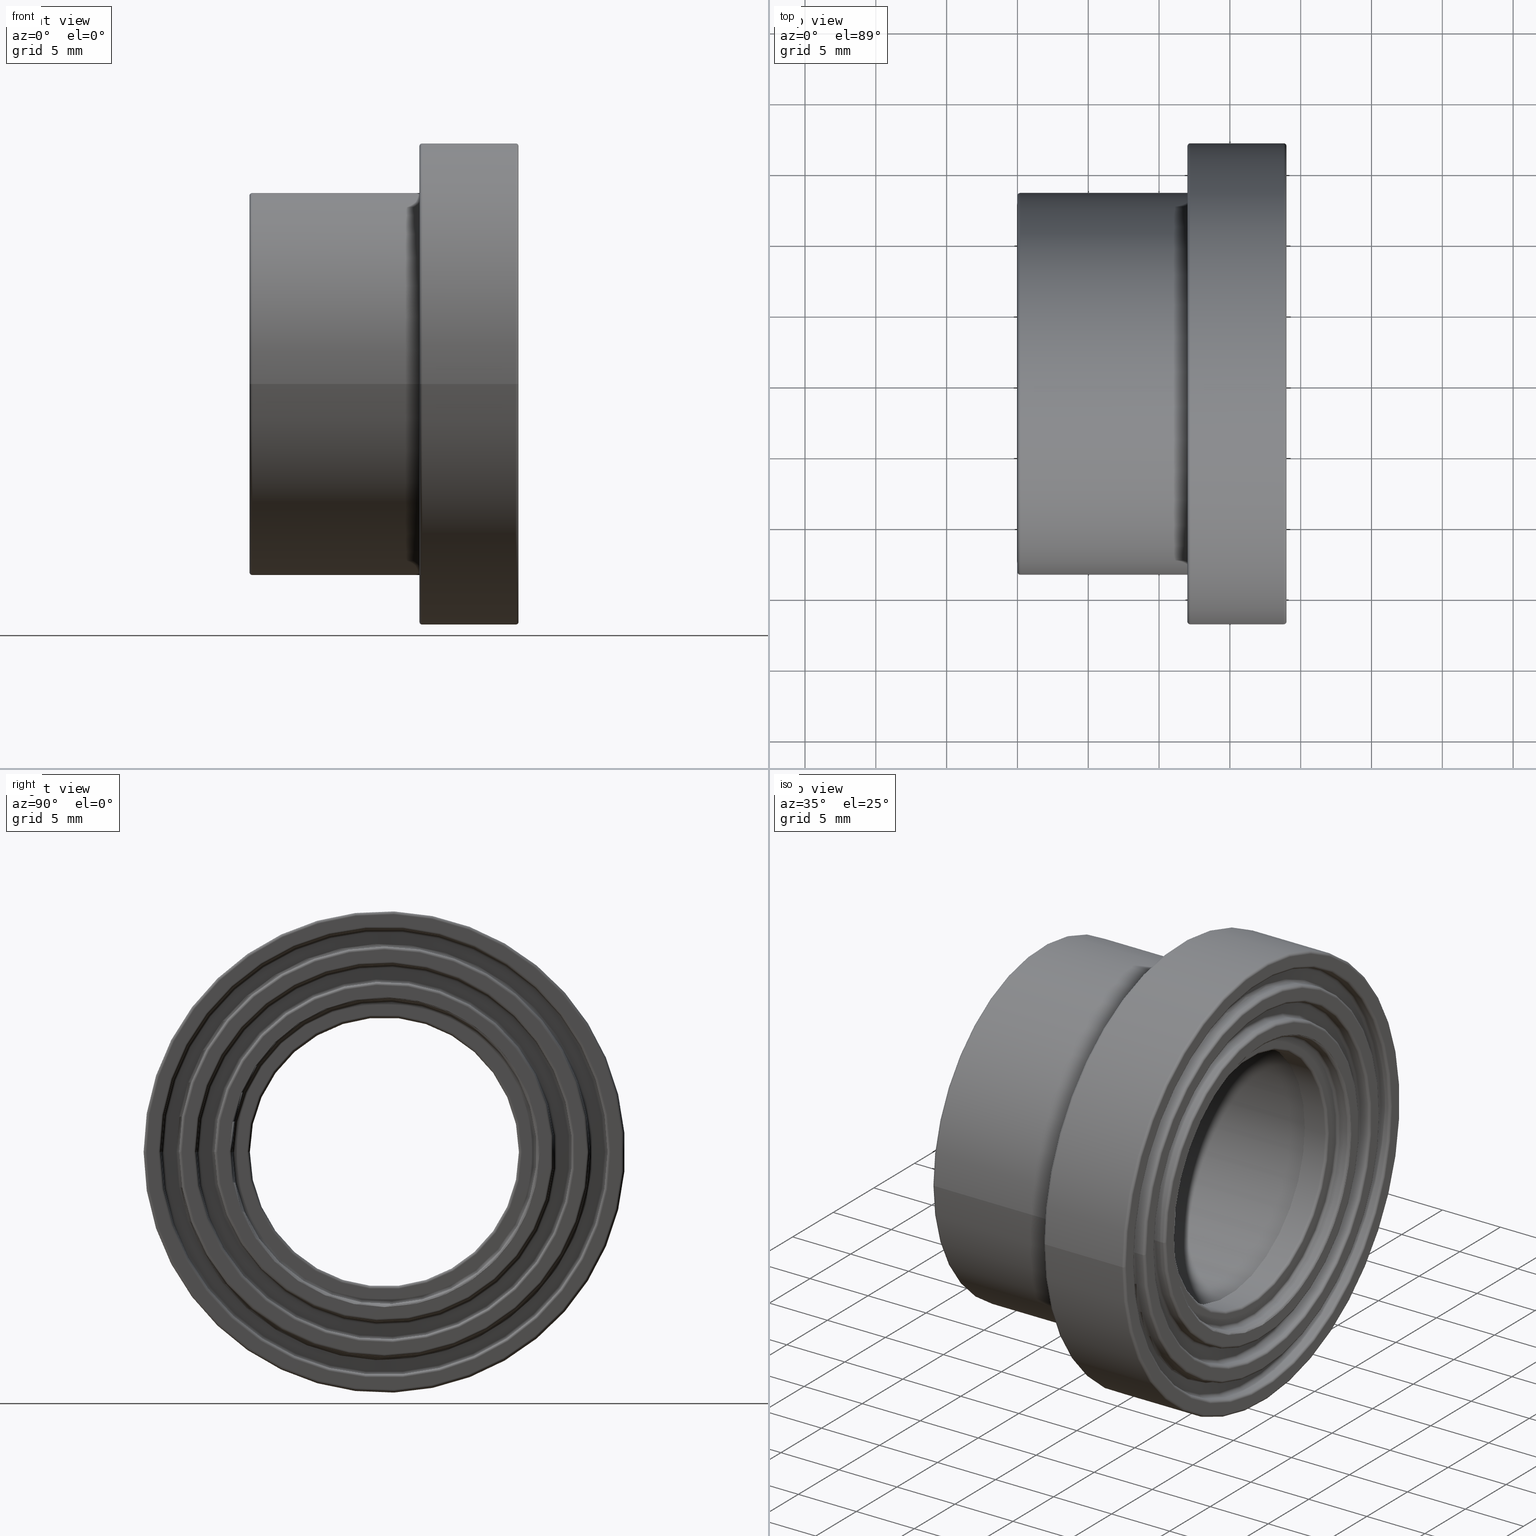
[diagram: canonical four-view strip — front | top / right | iso, engineering-drawing reading convention]
A machine part, canonical four-view strip (front | top / right | iso — engineering-drawing reading convention). The complete STEP part file that produces these views, byte-faithful:
ISO-10303-21;
HEADER;
/* Generated by software containing ST-Developer
 * from STEP Tools, Inc. (www.steptools.com) 
 */

FILE_DESCRIPTION(
/* description */ ('PLASSON FLANGE(FLAT GASKET)C 20'),
/* implementation_level */ '2;1');

FILE_NAME(
/* name */ 
'C:\\Dropbox\\KIMPROJECTS-Inventor\\99-16-3568-Processing\\PVC Catalog
 2017\\055200\\055200020.ipt.stp',
/* time_stamp */ '2017-12-07T16:04:57+02:00',
/* author */ ('KIM'),
/* organization */ (''),
/* preprocessor_version */ 'ST-DEVELOPER v15.6',
/* originating_system */ 'Autodesk Inventor 2015',
/* authorisation */ '');

FILE_SCHEMA (('AUTOMOTIVE_DESIGN { 1 0 10303 214 3 1 1 }'));
ENDSEC;

DATA;
#10=MECHANICAL_DESIGN_GEOMETRIC_PRESENTATION_REPRESENTATION('',(#13),#683);
#11=SHAPE_REPRESENTATION_RELATIONSHIP('SRR','None',#692,#12);
#12=ADVANCED_BREP_SHAPE_REPRESENTATION($,(#14),#682);
#13=STYLED_ITEM('',(#701),#14);
#14=MANIFOLD_SOLID_BREP('Solid1',#378);
#15=CYLINDRICAL_SURFACE('',#385,9.5);
#16=CYLINDRICAL_SURFACE('',#389,10.75);
#17=CYLINDRICAL_SURFACE('',#398,15.75);
#18=CYLINDRICAL_SURFACE('',#408,14.5);
#19=CYLINDRICAL_SURFACE('',#419,10.);
#20=CYLINDRICAL_SURFACE('',#423,12.);
#21=CYLINDRICAL_SURFACE('',#431,13.25);
#22=CYLINDRICAL_SURFACE('',#436,17.);
#23=CYLINDRICAL_SURFACE('',#444,13.5);
#24=PLANE('',#383);
#25=PLANE('',#393);
#26=PLANE('',#400);
#27=PLANE('',#404);
#28=PLANE('',#412);
#29=PLANE('',#417);
#30=PLANE('',#427);
#31=PLANE('',#440);
#32=PLANE('',#445);
#33=FACE_BOUND('',#100,.T.);
#34=FACE_BOUND('',#102,.T.);
#35=FACE_BOUND('',#104,.T.);
#36=FACE_BOUND('',#106,.T.);
#37=FACE_BOUND('',#108,.T.);
#38=FACE_BOUND('',#110,.T.);
#39=FACE_BOUND('',#112,.T.);
#40=FACE_BOUND('',#114,.T.);
#41=FACE_BOUND('',#116,.T.);
#42=FACE_BOUND('',#118,.T.);
#43=FACE_BOUND('',#120,.T.);
#44=FACE_BOUND('',#122,.T.);
#45=FACE_BOUND('',#124,.T.);
#46=FACE_BOUND('',#126,.T.);
#47=FACE_BOUND('',#128,.T.);
#48=FACE_BOUND('',#130,.T.);
#49=FACE_BOUND('',#132,.T.);
#50=FACE_BOUND('',#134,.T.);
#51=FACE_BOUND('',#136,.T.);
#52=FACE_BOUND('',#138,.T.);
#53=FACE_BOUND('',#140,.T.);
#54=FACE_BOUND('',#142,.T.);
#55=FACE_BOUND('',#144,.T.);
#56=FACE_BOUND('',#146,.T.);
#57=FACE_BOUND('',#148,.T.);
#58=FACE_BOUND('',#150,.T.);
#59=FACE_BOUND('',#152,.T.);
#60=FACE_BOUND('',#154,.T.);
#61=FACE_BOUND('',#156,.T.);
#62=FACE_BOUND('',#158,.T.);
#63=FACE_BOUND('',#160,.T.);
#64=FACE_BOUND('',#162,.T.);
#65=FACE_BOUND('',#164,.T.);
#66=FACE_OUTER_BOUND('',#99,.T.);
#67=FACE_OUTER_BOUND('',#101,.T.);
#68=FACE_OUTER_BOUND('',#103,.T.);
#69=FACE_OUTER_BOUND('',#105,.T.);
#70=FACE_OUTER_BOUND('',#107,.T.);
#71=FACE_OUTER_BOUND('',#109,.T.);
#72=FACE_OUTER_BOUND('',#111,.T.);
#73=FACE_OUTER_BOUND('',#113,.T.);
#74=FACE_OUTER_BOUND('',#115,.T.);
#75=FACE_OUTER_BOUND('',#117,.T.);
#76=FACE_OUTER_BOUND('',#119,.T.);
#77=FACE_OUTER_BOUND('',#121,.T.);
#78=FACE_OUTER_BOUND('',#123,.T.);
#79=FACE_OUTER_BOUND('',#125,.T.);
#80=FACE_OUTER_BOUND('',#127,.T.);
#81=FACE_OUTER_BOUND('',#129,.T.);
#82=FACE_OUTER_BOUND('',#131,.T.);
#83=FACE_OUTER_BOUND('',#133,.T.);
#84=FACE_OUTER_BOUND('',#135,.T.);
#85=FACE_OUTER_BOUND('',#137,.T.);
#86=FACE_OUTER_BOUND('',#139,.T.);
#87=FACE_OUTER_BOUND('',#141,.T.);
#88=FACE_OUTER_BOUND('',#143,.T.);
#89=FACE_OUTER_BOUND('',#145,.T.);
#90=FACE_OUTER_BOUND('',#147,.T.);
#91=FACE_OUTER_BOUND('',#149,.T.);
#92=FACE_OUTER_BOUND('',#151,.T.);
#93=FACE_OUTER_BOUND('',#153,.T.);
#94=FACE_OUTER_BOUND('',#155,.T.);
#95=FACE_OUTER_BOUND('',#157,.T.);
#96=FACE_OUTER_BOUND('',#159,.T.);
#97=FACE_OUTER_BOUND('',#161,.T.);
#98=FACE_OUTER_BOUND('',#163,.T.);
#99=EDGE_LOOP('',(#264));
#100=EDGE_LOOP('',(#265));
#101=EDGE_LOOP('',(#266));
#102=EDGE_LOOP('',(#267));
#103=EDGE_LOOP('',(#268));
#104=EDGE_LOOP('',(#269));
#105=EDGE_LOOP('',(#270));
#106=EDGE_LOOP('',(#271));
#107=EDGE_LOOP('',(#272));
#108=EDGE_LOOP('',(#273));
#109=EDGE_LOOP('',(#274));
#110=EDGE_LOOP('',(#275));
#111=EDGE_LOOP('',(#276));
#112=EDGE_LOOP('',(#277));
#113=EDGE_LOOP('',(#278));
#114=EDGE_LOOP('',(#279));
#115=EDGE_LOOP('',(#280));
#116=EDGE_LOOP('',(#281));
#117=EDGE_LOOP('',(#282));
#118=EDGE_LOOP('',(#283));
#119=EDGE_LOOP('',(#284));
#120=EDGE_LOOP('',(#285));
#121=EDGE_LOOP('',(#286));
#122=EDGE_LOOP('',(#287));
#123=EDGE_LOOP('',(#288));
#124=EDGE_LOOP('',(#289));
#125=EDGE_LOOP('',(#290));
#126=EDGE_LOOP('',(#291));
#127=EDGE_LOOP('',(#292));
#128=EDGE_LOOP('',(#293));
#129=EDGE_LOOP('',(#294));
#130=EDGE_LOOP('',(#295));
#131=EDGE_LOOP('',(#296));
#132=EDGE_LOOP('',(#297));
#133=EDGE_LOOP('',(#298));
#134=EDGE_LOOP('',(#299));
#135=EDGE_LOOP('',(#300));
#136=EDGE_LOOP('',(#301));
#137=EDGE_LOOP('',(#302));
#138=EDGE_LOOP('',(#303));
#139=EDGE_LOOP('',(#304));
#140=EDGE_LOOP('',(#305));
#141=EDGE_LOOP('',(#306));
#142=EDGE_LOOP('',(#307));
#143=EDGE_LOOP('',(#308));
#144=EDGE_LOOP('',(#309));
#145=EDGE_LOOP('',(#310));
#146=EDGE_LOOP('',(#311));
#147=EDGE_LOOP('',(#312));
#148=EDGE_LOOP('',(#313));
#149=EDGE_LOOP('',(#314));
#150=EDGE_LOOP('',(#315));
#151=EDGE_LOOP('',(#316));
#152=EDGE_LOOP('',(#317));
#153=EDGE_LOOP('',(#318));
#154=EDGE_LOOP('',(#319));
#155=EDGE_LOOP('',(#320));
#156=EDGE_LOOP('',(#321));
#157=EDGE_LOOP('',(#322));
#158=EDGE_LOOP('',(#323));
#159=EDGE_LOOP('',(#324));
#160=EDGE_LOOP('',(#325));
#161=EDGE_LOOP('',(#326));
#162=EDGE_LOOP('',(#327));
#163=EDGE_LOOP('',(#328));
#164=EDGE_LOOP('',(#329));
#165=CIRCLE('',#381,9.5);
#166=CIRCLE('',#382,9.7);
#167=CIRCLE('',#384,10.55);
#168=CIRCLE('',#386,9.5);
#169=CIRCLE('',#388,10.75);
#170=CIRCLE('',#390,10.75);
#171=CIRCLE('',#392,10.95);
#172=CIRCLE('',#394,11.8);
#173=CIRCLE('',#396,15.75);
#174=CIRCLE('',#397,15.95);
#175=CIRCLE('',#399,15.75);
#176=CIRCLE('',#401,16.8);
#177=CIRCLE('',#403,15.55);
#178=CIRCLE('',#405,14.7);
#179=CIRCLE('',#407,14.5);
#180=CIRCLE('',#409,14.5);
#181=CIRCLE('',#411,14.3);
#182=CIRCLE('',#413,13.45);
#183=CIRCLE('',#415,10.2);
#184=CIRCLE('',#416,10.);
#185=CIRCLE('',#418,13.3);
#186=CIRCLE('',#420,10.);
#187=CIRCLE('',#422,12.);
#188=CIRCLE('',#424,12.);
#189=CIRCLE('',#426,12.2);
#190=CIRCLE('',#428,13.05);
#191=CIRCLE('',#430,13.25);
#192=CIRCLE('',#432,13.25);
#193=CIRCLE('',#435,17.);
#194=CIRCLE('',#437,17.);
#195=CIRCLE('',#439,16.8);
#196=CIRCLE('',#441,13.5);
#197=CIRCLE('',#443,13.5);
#198=VERTEX_POINT('',#582);
#199=VERTEX_POINT('',#584);
#200=VERTEX_POINT('',#587);
#201=VERTEX_POINT('',#590);
#202=VERTEX_POINT('',#593);
#203=VERTEX_POINT('',#596);
#204=VERTEX_POINT('',#599);
#205=VERTEX_POINT('',#602);
#206=VERTEX_POINT('',#605);
#207=VERTEX_POINT('',#607);
#208=VERTEX_POINT('',#610);
#209=VERTEX_POINT('',#613);
#210=VERTEX_POINT('',#616);
#211=VERTEX_POINT('',#619);
#212=VERTEX_POINT('',#622);
#213=VERTEX_POINT('',#625);
#214=VERTEX_POINT('',#628);
#215=VERTEX_POINT('',#631);
#216=VERTEX_POINT('',#634);
#217=VERTEX_POINT('',#636);
#218=VERTEX_POINT('',#639);
#219=VERTEX_POINT('',#642);
#220=VERTEX_POINT('',#645);
#221=VERTEX_POINT('',#648);
#222=VERTEX_POINT('',#651);
#223=VERTEX_POINT('',#654);
#224=VERTEX_POINT('',#657);
#225=VERTEX_POINT('',#660);
#226=VERTEX_POINT('',#664);
#227=VERTEX_POINT('',#667);
#228=VERTEX_POINT('',#670);
#229=VERTEX_POINT('',#673);
#230=VERTEX_POINT('',#676);
#231=EDGE_CURVE('',#198,#198,#165,.T.);
#232=EDGE_CURVE('',#199,#199,#166,.T.);
#233=EDGE_CURVE('',#200,#200,#167,.T.);
#234=EDGE_CURVE('',#201,#201,#168,.T.);
#235=EDGE_CURVE('',#202,#202,#169,.T.);
#236=EDGE_CURVE('',#203,#203,#170,.T.);
#237=EDGE_CURVE('',#204,#204,#171,.T.);
#238=EDGE_CURVE('',#205,#205,#172,.T.);
#239=EDGE_CURVE('',#206,#206,#173,.T.);
#240=EDGE_CURVE('',#207,#207,#174,.T.);
#241=EDGE_CURVE('',#208,#208,#175,.T.);
#242=EDGE_CURVE('',#209,#209,#176,.T.);
#243=EDGE_CURVE('',#210,#210,#177,.T.);
#244=EDGE_CURVE('',#211,#211,#178,.T.);
#245=EDGE_CURVE('',#212,#212,#179,.T.);
#246=EDGE_CURVE('',#213,#213,#180,.T.);
#247=EDGE_CURVE('',#214,#214,#181,.T.);
#248=EDGE_CURVE('',#215,#215,#182,.T.);
#249=EDGE_CURVE('',#216,#216,#183,.T.);
#250=EDGE_CURVE('',#217,#217,#184,.T.);
#251=EDGE_CURVE('',#218,#218,#185,.T.);
#252=EDGE_CURVE('',#219,#219,#186,.T.);
#253=EDGE_CURVE('',#220,#220,#187,.T.);
#254=EDGE_CURVE('',#221,#221,#188,.T.);
#255=EDGE_CURVE('',#222,#222,#189,.T.);
#256=EDGE_CURVE('',#223,#223,#190,.T.);
#257=EDGE_CURVE('',#224,#224,#191,.T.);
#258=EDGE_CURVE('',#225,#225,#192,.T.);
#259=EDGE_CURVE('',#226,#226,#193,.T.);
#260=EDGE_CURVE('',#227,#227,#194,.T.);
#261=EDGE_CURVE('',#228,#228,#195,.T.);
#262=EDGE_CURVE('',#229,#229,#196,.T.);
#263=EDGE_CURVE('',#230,#230,#197,.T.);
#264=ORIENTED_EDGE('',*,*,#231,.T.);
#265=ORIENTED_EDGE('',*,*,#232,.T.);
#266=ORIENTED_EDGE('',*,*,#233,.F.);
#267=ORIENTED_EDGE('',*,*,#232,.F.);
#268=ORIENTED_EDGE('',*,*,#234,.T.);
#269=ORIENTED_EDGE('',*,*,#231,.F.);
#270=ORIENTED_EDGE('',*,*,#233,.T.);
#271=ORIENTED_EDGE('',*,*,#235,.T.);
#272=ORIENTED_EDGE('',*,*,#236,.F.);
#273=ORIENTED_EDGE('',*,*,#235,.F.);
#274=ORIENTED_EDGE('',*,*,#236,.T.);
#275=ORIENTED_EDGE('',*,*,#237,.T.);
#276=ORIENTED_EDGE('',*,*,#238,.F.);
#277=ORIENTED_EDGE('',*,*,#237,.F.);
#278=ORIENTED_EDGE('',*,*,#239,.T.);
#279=ORIENTED_EDGE('',*,*,#240,.T.);
#280=ORIENTED_EDGE('',*,*,#241,.F.);
#281=ORIENTED_EDGE('',*,*,#239,.F.);
#282=ORIENTED_EDGE('',*,*,#242,.F.);
#283=ORIENTED_EDGE('',*,*,#240,.F.);
#284=ORIENTED_EDGE('',*,*,#243,.T.);
#285=ORIENTED_EDGE('',*,*,#241,.T.);
#286=ORIENTED_EDGE('',*,*,#243,.F.);
#287=ORIENTED_EDGE('',*,*,#244,.F.);
#288=ORIENTED_EDGE('',*,*,#245,.T.);
#289=ORIENTED_EDGE('',*,*,#244,.T.);
#290=ORIENTED_EDGE('',*,*,#246,.F.);
#291=ORIENTED_EDGE('',*,*,#245,.F.);
#292=ORIENTED_EDGE('',*,*,#247,.T.);
#293=ORIENTED_EDGE('',*,*,#246,.T.);
#294=ORIENTED_EDGE('',*,*,#247,.F.);
#295=ORIENTED_EDGE('',*,*,#248,.F.);
#296=ORIENTED_EDGE('',*,*,#249,.T.);
#297=ORIENTED_EDGE('',*,*,#250,.T.);
#298=ORIENTED_EDGE('',*,*,#251,.F.);
#299=ORIENTED_EDGE('',*,*,#249,.F.);
#300=ORIENTED_EDGE('',*,*,#252,.F.);
#301=ORIENTED_EDGE('',*,*,#250,.F.);
#302=ORIENTED_EDGE('',*,*,#238,.T.);
#303=ORIENTED_EDGE('',*,*,#253,.T.);
#304=ORIENTED_EDGE('',*,*,#254,.F.);
#305=ORIENTED_EDGE('',*,*,#253,.F.);
#306=ORIENTED_EDGE('',*,*,#254,.T.);
#307=ORIENTED_EDGE('',*,*,#255,.T.);
#308=ORIENTED_EDGE('',*,*,#256,.F.);
#309=ORIENTED_EDGE('',*,*,#255,.F.);
#310=ORIENTED_EDGE('',*,*,#256,.T.);
#311=ORIENTED_EDGE('',*,*,#257,.T.);
#312=ORIENTED_EDGE('',*,*,#258,.F.);
#313=ORIENTED_EDGE('',*,*,#257,.F.);
#314=ORIENTED_EDGE('',*,*,#258,.T.);
#315=ORIENTED_EDGE('',*,*,#248,.T.);
#316=ORIENTED_EDGE('',*,*,#242,.T.);
#317=ORIENTED_EDGE('',*,*,#259,.T.);
#318=ORIENTED_EDGE('',*,*,#260,.F.);
#319=ORIENTED_EDGE('',*,*,#259,.F.);
#320=ORIENTED_EDGE('',*,*,#260,.T.);
#321=ORIENTED_EDGE('',*,*,#261,.T.);
#322=ORIENTED_EDGE('',*,*,#261,.F.);
#323=ORIENTED_EDGE('',*,*,#262,.F.);
#324=ORIENTED_EDGE('',*,*,#263,.T.);
#325=ORIENTED_EDGE('',*,*,#251,.T.);
#326=ORIENTED_EDGE('',*,*,#262,.T.);
#327=ORIENTED_EDGE('',*,*,#263,.F.);
#328=ORIENTED_EDGE('',*,*,#252,.T.);
#329=ORIENTED_EDGE('',*,*,#234,.F.);
#330=TOROIDAL_SURFACE('',#380,9.7,0.2);
#331=TOROIDAL_SURFACE('',#387,10.55,0.2);
#332=TOROIDAL_SURFACE('',#391,10.95,0.2);
#333=TOROIDAL_SURFACE('',#395,15.95,0.2);
#334=TOROIDAL_SURFACE('',#402,15.55,0.2);
#335=TOROIDAL_SURFACE('',#406,14.7,0.2);
#336=TOROIDAL_SURFACE('',#410,14.3,0.2);
#337=TOROIDAL_SURFACE('',#414,10.2,0.2);
#338=TOROIDAL_SURFACE('',#421,11.8,0.2);
#339=TOROIDAL_SURFACE('',#425,12.2,0.2);
#340=TOROIDAL_SURFACE('',#429,13.05,0.2);
#341=TOROIDAL_SURFACE('',#433,13.45,0.2);
#342=TOROIDAL_SURFACE('',#434,16.8,0.2);
#343=TOROIDAL_SURFACE('',#438,16.8,0.2);
#344=TOROIDAL_SURFACE('',#442,13.3,0.2);
#345=ADVANCED_FACE('',(#66,#33),#330,.T.);
#346=ADVANCED_FACE('',(#67,#34),#24,.T.);
#347=ADVANCED_FACE('',(#68,#35),#15,.F.);
#348=ADVANCED_FACE('',(#69,#36),#331,.F.);
#349=ADVANCED_FACE('',(#70,#37),#16,.F.);
#350=ADVANCED_FACE('',(#71,#38),#332,.T.);
#351=ADVANCED_FACE('',(#72,#39),#25,.T.);
#352=ADVANCED_FACE('',(#73,#40),#333,.T.);
#353=ADVANCED_FACE('',(#74,#41),#17,.F.);
#354=ADVANCED_FACE('',(#75,#42),#26,.T.);
#355=ADVANCED_FACE('',(#76,#43),#334,.F.);
#356=ADVANCED_FACE('',(#77,#44),#27,.T.);
#357=ADVANCED_FACE('',(#78,#45),#335,.F.);
#358=ADVANCED_FACE('',(#79,#46),#18,.T.);
#359=ADVANCED_FACE('',(#80,#47),#336,.T.);
#360=ADVANCED_FACE('',(#81,#48),#28,.T.);
#361=ADVANCED_FACE('',(#82,#49),#337,.T.);
#362=ADVANCED_FACE('',(#83,#50),#29,.T.);
#363=ADVANCED_FACE('',(#84,#51),#19,.F.);
#364=ADVANCED_FACE('',(#85,#52),#338,.T.);
#365=ADVANCED_FACE('',(#86,#53),#20,.T.);
#366=ADVANCED_FACE('',(#87,#54),#339,.F.);
#367=ADVANCED_FACE('',(#88,#55),#30,.T.);
#368=ADVANCED_FACE('',(#89,#56),#340,.F.);
#369=ADVANCED_FACE('',(#90,#57),#21,.F.);
#370=ADVANCED_FACE('',(#91,#58),#341,.T.);
#371=ADVANCED_FACE('',(#92,#59),#342,.T.);
#372=ADVANCED_FACE('',(#93,#60),#22,.T.);
#373=ADVANCED_FACE('',(#94,#61),#343,.T.);
#374=ADVANCED_FACE('',(#95,#62),#31,.T.);
#375=ADVANCED_FACE('',(#96,#63),#344,.T.);
#376=ADVANCED_FACE('',(#97,#64),#23,.T.);
#377=ADVANCED_FACE('',(#98,#65),#32,.T.);
#378=CLOSED_SHELL('',(#345,#346,#347,#348,#349,#350,#351,#352,#353,#354,
#355,#356,#357,#358,#359,#360,#361,#362,#363,#364,#365,#366,#367,#368,#369,
#370,#371,#372,#373,#374,#375,#376,#377));
#379=AXIS2_PLACEMENT_3D('placement',#580,#446,#447);
#380=AXIS2_PLACEMENT_3D('',#581,#448,#449);
#381=AXIS2_PLACEMENT_3D('',#583,#450,#451);
#382=AXIS2_PLACEMENT_3D('',#585,#452,#453);
#383=AXIS2_PLACEMENT_3D('',#586,#454,#455);
#384=AXIS2_PLACEMENT_3D('',#588,#456,#457);
#385=AXIS2_PLACEMENT_3D('',#589,#458,#459);
#386=AXIS2_PLACEMENT_3D('',#591,#460,#461);
#387=AXIS2_PLACEMENT_3D('',#592,#462,#463);
#388=AXIS2_PLACEMENT_3D('',#594,#464,#465);
#389=AXIS2_PLACEMENT_3D('',#595,#466,#467);
#390=AXIS2_PLACEMENT_3D('',#597,#468,#469);
#391=AXIS2_PLACEMENT_3D('',#598,#470,#471);
#392=AXIS2_PLACEMENT_3D('',#600,#472,#473);
#393=AXIS2_PLACEMENT_3D('',#601,#474,#475);
#394=AXIS2_PLACEMENT_3D('',#603,#476,#477);
#395=AXIS2_PLACEMENT_3D('',#604,#478,#479);
#396=AXIS2_PLACEMENT_3D('',#606,#480,#481);
#397=AXIS2_PLACEMENT_3D('',#608,#482,#483);
#398=AXIS2_PLACEMENT_3D('',#609,#484,#485);
#399=AXIS2_PLACEMENT_3D('',#611,#486,#487);
#400=AXIS2_PLACEMENT_3D('',#612,#488,#489);
#401=AXIS2_PLACEMENT_3D('',#614,#490,#491);
#402=AXIS2_PLACEMENT_3D('',#615,#492,#493);
#403=AXIS2_PLACEMENT_3D('',#617,#494,#495);
#404=AXIS2_PLACEMENT_3D('',#618,#496,#497);
#405=AXIS2_PLACEMENT_3D('',#620,#498,#499);
#406=AXIS2_PLACEMENT_3D('',#621,#500,#501);
#407=AXIS2_PLACEMENT_3D('',#623,#502,#503);
#408=AXIS2_PLACEMENT_3D('',#624,#504,#505);
#409=AXIS2_PLACEMENT_3D('',#626,#506,#507);
#410=AXIS2_PLACEMENT_3D('',#627,#508,#509);
#411=AXIS2_PLACEMENT_3D('',#629,#510,#511);
#412=AXIS2_PLACEMENT_3D('',#630,#512,#513);
#413=AXIS2_PLACEMENT_3D('',#632,#514,#515);
#414=AXIS2_PLACEMENT_3D('',#633,#516,#517);
#415=AXIS2_PLACEMENT_3D('',#635,#518,#519);
#416=AXIS2_PLACEMENT_3D('',#637,#520,#521);
#417=AXIS2_PLACEMENT_3D('',#638,#522,#523);
#418=AXIS2_PLACEMENT_3D('',#640,#524,#525);
#419=AXIS2_PLACEMENT_3D('',#641,#526,#527);
#420=AXIS2_PLACEMENT_3D('',#643,#528,#529);
#421=AXIS2_PLACEMENT_3D('',#644,#530,#531);
#422=AXIS2_PLACEMENT_3D('',#646,#532,#533);
#423=AXIS2_PLACEMENT_3D('',#647,#534,#535);
#424=AXIS2_PLACEMENT_3D('',#649,#536,#537);
#425=AXIS2_PLACEMENT_3D('',#650,#538,#539);
#426=AXIS2_PLACEMENT_3D('',#652,#540,#541);
#427=AXIS2_PLACEMENT_3D('',#653,#542,#543);
#428=AXIS2_PLACEMENT_3D('',#655,#544,#545);
#429=AXIS2_PLACEMENT_3D('',#656,#546,#547);
#430=AXIS2_PLACEMENT_3D('',#658,#548,#549);
#431=AXIS2_PLACEMENT_3D('',#659,#550,#551);
#432=AXIS2_PLACEMENT_3D('',#661,#552,#553);
#433=AXIS2_PLACEMENT_3D('',#662,#554,#555);
#434=AXIS2_PLACEMENT_3D('',#663,#556,#557);
#435=AXIS2_PLACEMENT_3D('',#665,#558,#559);
#436=AXIS2_PLACEMENT_3D('',#666,#560,#561);
#437=AXIS2_PLACEMENT_3D('',#668,#562,#563);
#438=AXIS2_PLACEMENT_3D('',#669,#564,#565);
#439=AXIS2_PLACEMENT_3D('',#671,#566,#567);
#440=AXIS2_PLACEMENT_3D('',#672,#568,#569);
#441=AXIS2_PLACEMENT_3D('',#674,#570,#571);
#442=AXIS2_PLACEMENT_3D('',#675,#572,#573);
#443=AXIS2_PLACEMENT_3D('',#677,#574,#575);
#444=AXIS2_PLACEMENT_3D('',#678,#576,#577);
#445=AXIS2_PLACEMENT_3D('',#679,#578,#579);
#446=DIRECTION('axis',(0.,0.,1.));
#447=DIRECTION('refdir',(1.,0.,0.));
#448=DIRECTION('center_axis',(-1.,0.,0.));
#449=DIRECTION('ref_axis',(0.,0.,1.));
#450=DIRECTION('center_axis',(-1.,0.,0.));
#451=DIRECTION('ref_axis',(0.,1.,6.12323399573677E-17));
#452=DIRECTION('center_axis',(1.,0.,0.));
#453=DIRECTION('ref_axis',(0.,1.,6.12323399573677E-17));
#454=DIRECTION('center_axis',(1.,0.,0.));
#455=DIRECTION('ref_axis',(0.,0.,-1.));
#456=DIRECTION('center_axis',(-1.,0.,0.));
#457=DIRECTION('ref_axis',(0.,1.,6.12323399573677E-17));
#458=DIRECTION('center_axis',(-1.,0.,0.));
#459=DIRECTION('ref_axis',(0.,-1.,0.));
#460=DIRECTION('center_axis',(-1.,0.,0.));
#461=DIRECTION('ref_axis',(0.,0.,1.));
#462=DIRECTION('center_axis',(-1.,0.,0.));
#463=DIRECTION('ref_axis',(0.,0.,1.));
#464=DIRECTION('center_axis',(1.,0.,0.));
#465=DIRECTION('ref_axis',(0.,1.,6.12323399573677E-17));
#466=DIRECTION('center_axis',(-1.,0.,0.));
#467=DIRECTION('ref_axis',(0.,-1.,0.));
#468=DIRECTION('center_axis',(-1.,0.,0.));
#469=DIRECTION('ref_axis',(0.,1.,6.12323399573677E-17));
#470=DIRECTION('center_axis',(-1.,0.,0.));
#471=DIRECTION('ref_axis',(0.,0.,1.));
#472=DIRECTION('center_axis',(1.,0.,0.));
#473=DIRECTION('ref_axis',(0.,1.,6.12323399573677E-17));
#474=DIRECTION('center_axis',(1.,0.,0.));
#475=DIRECTION('ref_axis',(0.,0.,-1.));
#476=DIRECTION('center_axis',(-1.,0.,0.));
#477=DIRECTION('ref_axis',(0.,1.,6.12323399573676E-17));
#478=DIRECTION('center_axis',(-1.,0.,0.));
#479=DIRECTION('ref_axis',(0.,0.,1.));
#480=DIRECTION('center_axis',(-1.,0.,0.));
#481=DIRECTION('ref_axis',(0.,1.,6.12323399573676E-17));
#482=DIRECTION('center_axis',(1.,0.,0.));
#483=DIRECTION('ref_axis',(0.,1.,6.12323399573677E-17));
#484=DIRECTION('center_axis',(-1.,0.,0.));
#485=DIRECTION('ref_axis',(0.,-1.,0.));
#486=DIRECTION('center_axis',(1.,0.,0.));
#487=DIRECTION('ref_axis',(0.,1.,6.12323399573676E-17));
#488=DIRECTION('center_axis',(1.,0.,0.));
#489=DIRECTION('ref_axis',(0.,0.,-1.));
#490=DIRECTION('center_axis',(-1.,0.,0.));
#491=DIRECTION('ref_axis',(0.,1.,6.12323399573677E-17));
#492=DIRECTION('center_axis',(-1.,0.,0.));
#493=DIRECTION('ref_axis',(0.,0.,1.));
#494=DIRECTION('center_axis',(-1.,0.,0.));
#495=DIRECTION('ref_axis',(0.,1.,6.12323399573677E-17));
#496=DIRECTION('center_axis',(1.,0.,0.));
#497=DIRECTION('ref_axis',(0.,0.,-1.));
#498=DIRECTION('center_axis',(1.,0.,0.));
#499=DIRECTION('ref_axis',(0.,1.,6.12323399573677E-17));
#500=DIRECTION('center_axis',(-1.,0.,0.));
#501=DIRECTION('ref_axis',(0.,0.,1.));
#502=DIRECTION('center_axis',(-1.,0.,0.));
#503=DIRECTION('ref_axis',(0.,1.,6.12323399573677E-17));
#504=DIRECTION('center_axis',(-1.,0.,0.));
#505=DIRECTION('ref_axis',(0.,-1.,0.));
#506=DIRECTION('center_axis',(1.,0.,0.));
#507=DIRECTION('ref_axis',(0.,1.,6.12323399573677E-17));
#508=DIRECTION('center_axis',(-1.,0.,0.));
#509=DIRECTION('ref_axis',(0.,0.,1.));
#510=DIRECTION('center_axis',(-1.,0.,0.));
#511=DIRECTION('ref_axis',(0.,1.,6.12323399573676E-17));
#512=DIRECTION('center_axis',(1.,0.,0.));
#513=DIRECTION('ref_axis',(0.,0.,-1.));
#514=DIRECTION('center_axis',(1.,0.,0.));
#515=DIRECTION('ref_axis',(0.,1.,6.12323399573677E-17));
#516=DIRECTION('center_axis',(-1.,0.,0.));
#517=DIRECTION('ref_axis',(0.,0.,1.));
#518=DIRECTION('center_axis',(-1.,0.,0.));
#519=DIRECTION('ref_axis',(0.,1.,6.12323399573677E-17));
#520=DIRECTION('center_axis',(1.,0.,0.));
#521=DIRECTION('ref_axis',(0.,1.,6.12323399573677E-17));
#522=DIRECTION('center_axis',(-1.,0.,0.));
#523=DIRECTION('ref_axis',(0.,0.,1.));
#524=DIRECTION('center_axis',(1.,0.,0.));
#525=DIRECTION('ref_axis',(0.,1.,6.12323399573677E-17));
#526=DIRECTION('center_axis',(-1.,0.,0.));
#527=DIRECTION('ref_axis',(0.,-1.,0.));
#528=DIRECTION('center_axis',(-1.,0.,0.));
#529=DIRECTION('ref_axis',(0.,0.,1.));
#530=DIRECTION('center_axis',(-1.,0.,0.));
#531=DIRECTION('ref_axis',(0.,0.,1.));
#532=DIRECTION('center_axis',(1.,0.,0.));
#533=DIRECTION('ref_axis',(0.,1.,6.12323399573677E-17));
#534=DIRECTION('center_axis',(-1.,0.,0.));
#535=DIRECTION('ref_axis',(0.,-1.,0.));
#536=DIRECTION('center_axis',(-1.,0.,0.));
#537=DIRECTION('ref_axis',(0.,1.,6.12323399573677E-17));
#538=DIRECTION('center_axis',(-1.,0.,0.));
#539=DIRECTION('ref_axis',(0.,0.,1.));
#540=DIRECTION('center_axis',(1.,0.,0.));
#541=DIRECTION('ref_axis',(0.,1.,6.12323399573677E-17));
#542=DIRECTION('center_axis',(1.,0.,0.));
#543=DIRECTION('ref_axis',(0.,0.,-1.));
#544=DIRECTION('center_axis',(-1.,0.,0.));
#545=DIRECTION('ref_axis',(0.,1.,6.12323399573676E-17));
#546=DIRECTION('center_axis',(-1.,0.,0.));
#547=DIRECTION('ref_axis',(0.,0.,1.));
#548=DIRECTION('center_axis',(1.,0.,0.));
#549=DIRECTION('ref_axis',(0.,1.,6.12323399573677E-17));
#550=DIRECTION('center_axis',(-1.,0.,0.));
#551=DIRECTION('ref_axis',(0.,-1.,0.));
#552=DIRECTION('center_axis',(-1.,0.,0.));
#553=DIRECTION('ref_axis',(0.,1.,6.12323399573677E-17));
#554=DIRECTION('center_axis',(-1.,0.,0.));
#555=DIRECTION('ref_axis',(0.,0.,1.));
#556=DIRECTION('center_axis',(-1.,0.,0.));
#557=DIRECTION('ref_axis',(0.,0.,1.));
#558=DIRECTION('center_axis',(1.,0.,0.));
#559=DIRECTION('ref_axis',(0.,1.,6.12323399573677E-17));
#560=DIRECTION('center_axis',(-1.,0.,0.));
#561=DIRECTION('ref_axis',(0.,-1.,0.));
#562=DIRECTION('center_axis',(-1.,0.,0.));
#563=DIRECTION('ref_axis',(0.,1.,6.12323399573677E-17));
#564=DIRECTION('center_axis',(-1.,0.,0.));
#565=DIRECTION('ref_axis',(0.,0.,1.));
#566=DIRECTION('center_axis',(1.,0.,0.));
#567=DIRECTION('ref_axis',(0.,1.,6.12323399573677E-17));
#568=DIRECTION('center_axis',(-1.,0.,0.));
#569=DIRECTION('ref_axis',(0.,0.,1.));
#570=DIRECTION('center_axis',(-1.,0.,0.));
#571=DIRECTION('ref_axis',(0.,0.,1.));
#572=DIRECTION('center_axis',(-1.,0.,0.));
#573=DIRECTION('ref_axis',(0.,0.,1.));
#574=DIRECTION('center_axis',(-1.,0.,0.));
#575=DIRECTION('ref_axis',(0.,1.,6.12323399573677E-17));
#576=DIRECTION('center_axis',(-1.,0.,0.));
#577=DIRECTION('ref_axis',(0.,-1.,0.));
#578=DIRECTION('center_axis',(-1.,0.,0.));
#579=DIRECTION('ref_axis',(0.,0.,1.));
#580=CARTESIAN_POINT('',(0.,0.,0.));
#581=CARTESIAN_POINT('Origin',(17.75,0.,0.));
#582=CARTESIAN_POINT('',(17.75,-9.5,5.81707229594993E-16));
#583=CARTESIAN_POINT('Origin',(17.75,0.,0.));
#584=CARTESIAN_POINT('',(17.95,-9.7,-1.7818610927594E-15));
#585=CARTESIAN_POINT('Origin',(17.95,0.,0.));
#586=CARTESIAN_POINT('Origin',(17.95,-10.75,0.));
#587=CARTESIAN_POINT('',(17.95,-10.55,6.46001186550229E-16));
#588=CARTESIAN_POINT('Origin',(17.95,0.,0.));
#589=CARTESIAN_POINT('Origin',(16.975,0.,0.));
#590=CARTESIAN_POINT('',(16.,-9.5,0.));
#591=CARTESIAN_POINT('Origin',(16.,0.,0.));
#592=CARTESIAN_POINT('Origin',(18.15,0.,0.));
#593=CARTESIAN_POINT('',(18.15,-10.75,-1.97474296362511E-15));
#594=CARTESIAN_POINT('Origin',(18.15,0.,0.));
#595=CARTESIAN_POINT('Origin',(18.475,0.,0.));
#596=CARTESIAN_POINT('',(18.8,-10.75,6.58247654541702E-16));
#597=CARTESIAN_POINT('Origin',(18.8,0.,0.));
#598=CARTESIAN_POINT('Origin',(18.8,0.,0.));
#599=CARTESIAN_POINT('',(19.,-10.95,-2.01148236759953E-15));
#600=CARTESIAN_POINT('Origin',(19.,0.,0.));
#601=CARTESIAN_POINT('Origin',(19.,-12.,0.));
#602=CARTESIAN_POINT('',(19.,-11.8,7.22541611496938E-16));
#603=CARTESIAN_POINT('Origin',(19.,0.,0.));
#604=CARTESIAN_POINT('Origin',(18.8,0.,0.));
#605=CARTESIAN_POINT('',(18.8,-15.75,9.6440935432854E-16));
#606=CARTESIAN_POINT('Origin',(18.8,0.,0.));
#607=CARTESIAN_POINT('',(19.,-15.95,-2.92996746696004E-15));
#608=CARTESIAN_POINT('Origin',(19.,0.,0.));
#609=CARTESIAN_POINT('Origin',(18.475,0.,0.));
#610=CARTESIAN_POINT('',(18.15,-15.75,-2.89322806298562E-15));
#611=CARTESIAN_POINT('Origin',(18.15,0.,0.));
#612=CARTESIAN_POINT('Origin',(19.,-17.,0.));
#613=CARTESIAN_POINT('',(19.,-16.8,1.02870331128378E-15));
#614=CARTESIAN_POINT('Origin',(19.,0.,0.));
#615=CARTESIAN_POINT('Origin',(18.15,0.,0.));
#616=CARTESIAN_POINT('',(17.95,-15.55,9.52162886337067E-16));
#617=CARTESIAN_POINT('Origin',(17.95,0.,0.));
#618=CARTESIAN_POINT('Origin',(17.95,-15.75,0.));
#619=CARTESIAN_POINT('',(17.95,-14.7,-2.70034619211991E-15));
#620=CARTESIAN_POINT('Origin',(17.95,0.,0.));
#621=CARTESIAN_POINT('Origin',(18.15,0.,0.));
#622=CARTESIAN_POINT('',(18.15,-14.5,8.87868929381831E-16));
#623=CARTESIAN_POINT('Origin',(18.15,0.,0.));
#624=CARTESIAN_POINT('Origin',(18.475,0.,0.));
#625=CARTESIAN_POINT('',(18.8,-14.5,-2.66360678814549E-15));
#626=CARTESIAN_POINT('Origin',(18.8,0.,0.));
#627=CARTESIAN_POINT('Origin',(18.8,0.,0.));
#628=CARTESIAN_POINT('',(19.,-14.3,8.75622461390357E-16));
#629=CARTESIAN_POINT('Origin',(19.,0.,0.));
#630=CARTESIAN_POINT('Origin',(19.,-14.5,0.));
#631=CARTESIAN_POINT('',(19.,-13.45,-2.47072491727978E-15));
#632=CARTESIAN_POINT('Origin',(19.,0.,0.));
#633=CARTESIAN_POINT('Origin',(0.2,0.,0.));
#634=CARTESIAN_POINT('',(0.,-10.2,6.2456986756515E-16));
#635=CARTESIAN_POINT('Origin',(0.,0.,0.));
#636=CARTESIAN_POINT('',(0.2,-10.,-1.83697019872103E-15));
#637=CARTESIAN_POINT('Origin',(0.2,0.,0.));
#638=CARTESIAN_POINT('Origin',(0.,-10.,0.));
#639=CARTESIAN_POINT('',(0.,-13.3,-2.44317036429897E-15));
#640=CARTESIAN_POINT('Origin',(0.,0.,0.));
#641=CARTESIAN_POINT('Origin',(8.,0.,0.));
#642=CARTESIAN_POINT('',(16.,-10.,0.));
#643=CARTESIAN_POINT('Origin',(16.,0.,0.));
#644=CARTESIAN_POINT('Origin',(18.8,0.,0.));
#645=CARTESIAN_POINT('',(18.8,-12.,-2.20436423846523E-15));
#646=CARTESIAN_POINT('Origin',(18.8,0.,0.));
#647=CARTESIAN_POINT('Origin',(18.475,0.,0.));
#648=CARTESIAN_POINT('',(18.15,-12.,7.34788079488411E-16));
#649=CARTESIAN_POINT('Origin',(18.15,0.,0.));
#650=CARTESIAN_POINT('Origin',(18.15,0.,0.));
#651=CARTESIAN_POINT('',(17.95,-12.2,-2.24110364243966E-15));
#652=CARTESIAN_POINT('Origin',(17.95,0.,0.));
#653=CARTESIAN_POINT('Origin',(17.95,-13.25,0.));
#654=CARTESIAN_POINT('',(17.95,-13.05,7.99082036443647E-16));
#655=CARTESIAN_POINT('Origin',(17.95,0.,0.));
#656=CARTESIAN_POINT('Origin',(18.15,0.,0.));
#657=CARTESIAN_POINT('',(18.15,-13.25,-2.43398551330536E-15));
#658=CARTESIAN_POINT('Origin',(18.15,0.,0.));
#659=CARTESIAN_POINT('Origin',(18.475,0.,0.));
#660=CARTESIAN_POINT('',(18.8,-13.25,8.11328504435121E-16));
#661=CARTESIAN_POINT('Origin',(18.8,0.,0.));
#662=CARTESIAN_POINT('Origin',(18.8,0.,0.));
#663=CARTESIAN_POINT('Origin',(18.8,0.,0.));
#664=CARTESIAN_POINT('',(18.8,-17.,-3.12284933782575E-15));
#665=CARTESIAN_POINT('Origin',(18.8,0.,0.));
#666=CARTESIAN_POINT('Origin',(15.5,0.,0.));
#667=CARTESIAN_POINT('',(12.2,-17.,1.04094977927525E-15));
#668=CARTESIAN_POINT('Origin',(12.2,0.,0.));
#669=CARTESIAN_POINT('Origin',(12.2,0.,0.));
#670=CARTESIAN_POINT('',(12.,-16.8,-3.08610993385133E-15));
#671=CARTESIAN_POINT('Origin',(12.,0.,0.));
#672=CARTESIAN_POINT('Origin',(12.,-13.5,0.));
#673=CARTESIAN_POINT('',(12.,-13.5,0.));
#674=CARTESIAN_POINT('Origin',(12.,0.,0.));
#675=CARTESIAN_POINT('Origin',(0.2,0.,0.));
#676=CARTESIAN_POINT('',(0.2,-13.5,8.26636589424463E-16));
#677=CARTESIAN_POINT('Origin',(0.2,0.,0.));
#678=CARTESIAN_POINT('Origin',(6.,0.,0.));
#679=CARTESIAN_POINT('Origin',(16.,-9.5,0.));
#680=UNCERTAINTY_MEASURE_WITH_UNIT(LENGTH_MEASURE(0.01),#684,
'DISTANCE_ACCURACY_VALUE',
'Maximum model space distance between geometric entities at asserted c
onnectivities');
#681=UNCERTAINTY_MEASURE_WITH_UNIT(LENGTH_MEASURE(1.E-6),#684,
'DISTANCE_ACCURACY_VALUE',
'Maximum model space distance between geometric entities at asserted c
onnectivities');
#682=(
GEOMETRIC_REPRESENTATION_CONTEXT(3)
GLOBAL_UNCERTAINTY_ASSIGNED_CONTEXT((#680))
GLOBAL_UNIT_ASSIGNED_CONTEXT((#684,#687,#685))
REPRESENTATION_CONTEXT('','3D')
);
#683=(
GEOMETRIC_REPRESENTATION_CONTEXT(3)
GLOBAL_UNCERTAINTY_ASSIGNED_CONTEXT((#681))
GLOBAL_UNIT_ASSIGNED_CONTEXT((#684,#687,#685))
REPRESENTATION_CONTEXT('','3D')
);
#684=(
LENGTH_UNIT()
NAMED_UNIT(*)
SI_UNIT(.MILLI.,.METRE.)
);
#685=(
NAMED_UNIT(*)
SI_UNIT($,.STERADIAN.)
SOLID_ANGLE_UNIT()
);
#686=DIMENSIONAL_EXPONENTS(0.,0.,0.,0.,0.,0.,0.);
#687=(
CONVERSION_BASED_UNIT('degree',#689)
NAMED_UNIT(#686)
PLANE_ANGLE_UNIT()
);
#688=(
NAMED_UNIT(*)
PLANE_ANGLE_UNIT()
SI_UNIT($,.RADIAN.)
);
#689=PLANE_ANGLE_MEASURE_WITH_UNIT(PLANE_ANGLE_MEASURE(0.01745329252),#688);
#690=SHAPE_DEFINITION_REPRESENTATION(#691,#692);
#691=PRODUCT_DEFINITION_SHAPE('',$,#694);
#692=SHAPE_REPRESENTATION('',(#379),#682);
#693=PRODUCT_DEFINITION_CONTEXT('part definition',#698,'design');
#694=PRODUCT_DEFINITION('055200020','055200020',#695,#693);
#695=PRODUCT_DEFINITION_FORMATION('',$,#700);
#696=PRODUCT_RELATED_PRODUCT_CATEGORY('055200020','055200020',(#700));
#697=APPLICATION_PROTOCOL_DEFINITION('international standard',
'automotive_design',2009,#698);
#698=APPLICATION_CONTEXT(
'Core Data for Automotive Mechanical Design Process');
#699=PRODUCT_CONTEXT('part definition',#698,'mechanical');
#700=PRODUCT('055200020','055200020',$,(#699));
#701=PRESENTATION_STYLE_ASSIGNMENT((#702));
#702=SURFACE_STYLE_USAGE(.BOTH.,#703);
#703=SURFACE_SIDE_STYLE($,(#704));
#704=SURFACE_STYLE_FILL_AREA(#705);
#705=FILL_AREA_STYLE($,(#706));
#706=FILL_AREA_STYLE_COLOUR($,#707);
#707=COLOUR_RGB('',0.749019607843137,0.749019607843137,0.749019607843137);
ENDSEC;
END-ISO-10303-21;
